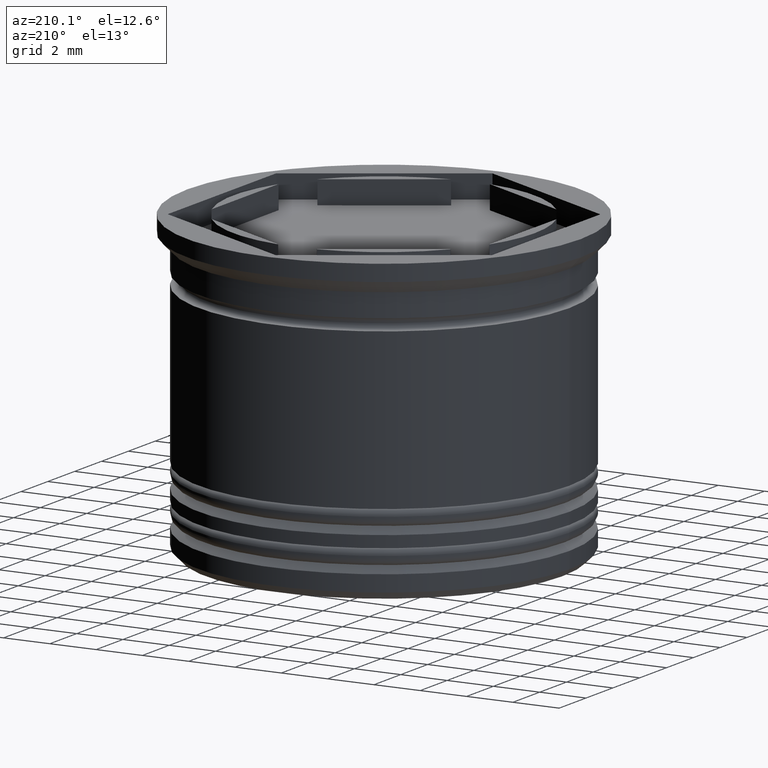
[diagram: clean part render]
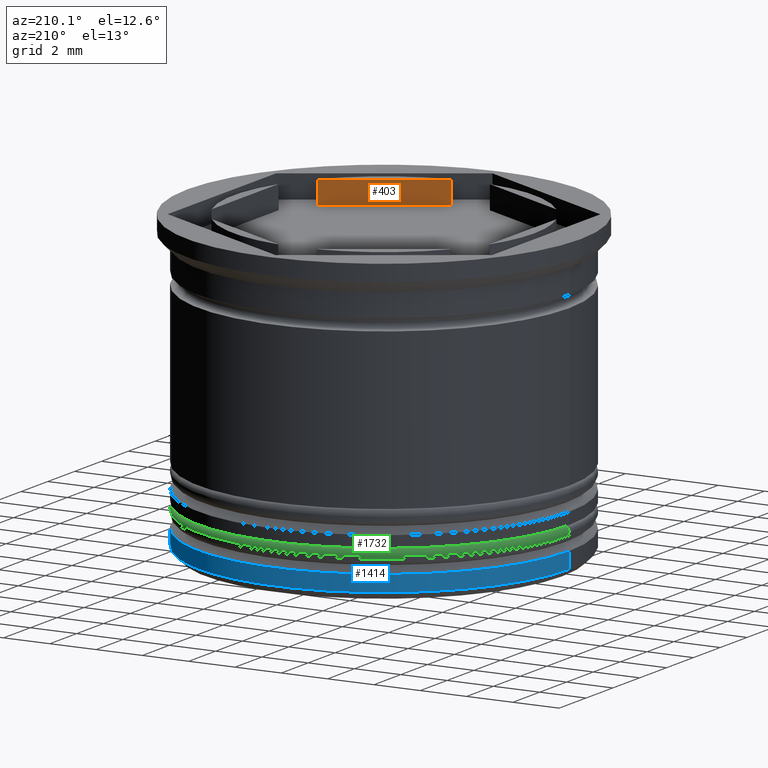
[diagram: same view with three faces highlighted in distinct colors, each labeled with its STEP entity id]
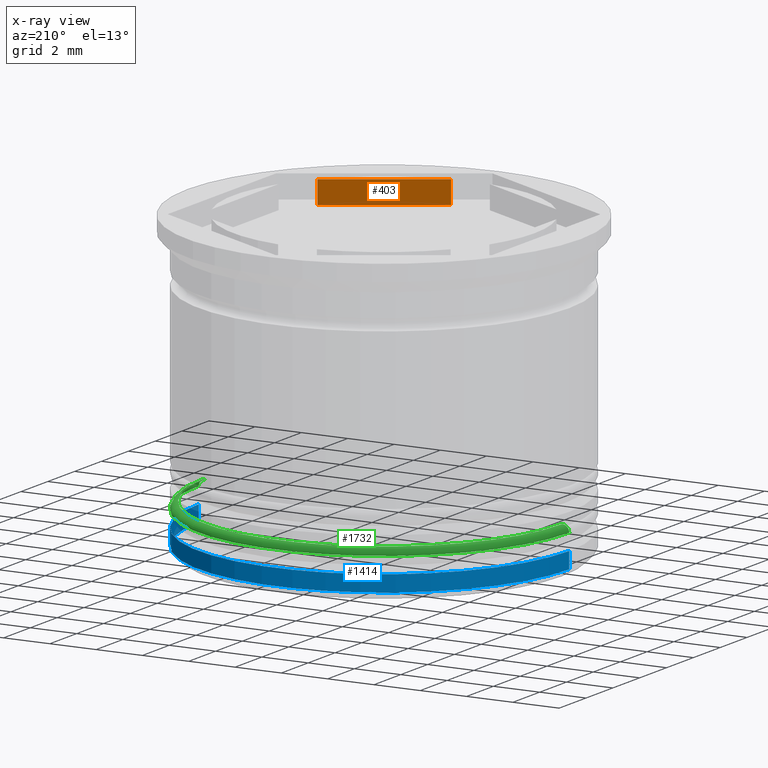
[diagram: x-ray of the same camera — body ghosted, the three highlighted faces saturated]
A machine part, auxiliary view with three faces highlighted in distinct colors.
The next image is the same camera in x-ray (body ghosted, the three faces saturated) — at least one of them is partly hidden behind the body in this view.
Their STEP definitions:

[orange] entity #403 — the highlighted planar face has unit normal (0.5, -0.866, 0).
#79 = CARTESIAN_POINT ( 'NONE',  ( 5.165063509461093716, -3.946152422706633356, 0.000000000000000000 ) ) ;
#94 = CARTESIAN_POINT ( 'NONE',  ( 0.8349364905389003999, -6.446152422706632912, 18.38477631085023134 ) ) ;
#99 = VERTEX_POINT ( 'NONE', #79 ) ;
#103 = DIRECTION ( 'NONE',  ( 0.000000000000000000, 0.000000000000000000, 1.000000000000000000 ) ) ;
#263 = VERTEX_POINT ( 'NONE', #787 ) ;
#330 = FACE_OUTER_BOUND ( 'NONE', #1373, .T. ) ;
#354 = DIRECTION ( 'NONE',  ( 0.8660254037844387076, 0.4999999999999997780, 0.000000000000000000 ) ) ;
#403 = ADVANCED_FACE ( 'NONE', ( #330 ), #1433, .F. ) ;
#459 = DIRECTION ( 'NONE',  ( 0.8660254037844388186, 0.4999999999999998335, 0.000000000000000000 ) ) ;
#567 = LINE ( 'NONE', #94, #849 ) ;
#575 = VERTEX_POINT ( 'NONE', #1054 ) ;
#614 = DIRECTION ( 'NONE',  ( -0.8660254037844388186, -0.4999999999999998335, 0.000000000000000000 ) ) ;
#698 = CARTESIAN_POINT ( 'NONE',  ( -4.336808689942017736E-16, -6.928203230275508773, -19.33030277982335932 ) ) ;
#787 = CARTESIAN_POINT ( 'NONE',  ( 0.8349364905389020652, -6.446152422706632024, 0.000000000000000000 ) ) ;
#844 = VERTEX_POINT ( 'NONE', #1257 ) ;
#849 = VECTOR ( 'NONE', #1033, 1000.000000000000000 ) ;
#1021 = EDGE_CURVE ( 'NONE', #844, #575, #1380, .T. ) ;
#1033 = DIRECTION ( 'NONE',  ( -0.000000000000000000, -0.000000000000000000, -1.000000000000000000 ) ) ;
#1054 = CARTESIAN_POINT ( 'NONE',  ( 0.8349364905389047298, -6.446152422706633800, -1.000000000000000888 ) ) ;
#1197 = ORIENTED_EDGE ( 'NONE', *, *, #1353, .F. ) ;
#1257 = CARTESIAN_POINT ( 'NONE',  ( 5.165063509461095492, -3.946152422706636909, -1.000000000000000888 ) ) ;
#1278 = EDGE_CURVE ( 'NONE', #844, #99, #1348, .T. ) ;
#1292 = DIRECTION ( 'NONE',  ( 0.4999999999999998335, -0.8660254037844388186, 0.000000000000000000 ) ) ;
#1342 = LINE ( 'NONE', #1533, #1950 ) ;
#1348 = LINE ( 'NONE', #1465, #1882 ) ;
#1353 = EDGE_CURVE ( 'NONE', #263, #575, #567, .T. ) ;
#1373 = EDGE_LOOP ( 'NONE', ( #1873, #1719, #1985, #1197 ) ) ;
#1380 = LINE ( 'NONE', #1684, #1881 ) ;
#1419 = EDGE_CURVE ( 'NONE', #263, #99, #1342, .T. ) ;
#1433 = PLANE ( 'NONE',  #1975 ) ;
#1465 = CARTESIAN_POINT ( 'NONE',  ( 5.165063509461097269, -3.946152422706632468, 18.38477631085023134 ) ) ;
#1533 = CARTESIAN_POINT ( 'NONE',  ( 2.999999999999998224, -5.196152422706632912, 0.000000000000000000 ) ) ;
#1684 = CARTESIAN_POINT ( 'NONE',  ( -4.336808689942017736E-16, -6.928203230275508773, -1.000000000000000888 ) ) ;
#1719 = ORIENTED_EDGE ( 'NONE', *, *, #1278, .F. ) ;
#1873 = ORIENTED_EDGE ( 'NONE', *, *, #1419, .T. ) ;
#1881 = VECTOR ( 'NONE', #614, 999.9999999999998863 ) ;
#1882 = VECTOR ( 'NONE', #103, 1000.000000000000000 ) ;
#1950 = VECTOR ( 'NONE', #459, 999.9999999999998863 ) ;
#1975 = AXIS2_PLACEMENT_3D ( 'NONE', #698, #1292, #354 ) ;
#1985 = ORIENTED_EDGE ( 'NONE', *, *, #1021, .T. ) ;

[blue] entity #1414 — the highlighted cylindrical surface (partial cylindrical patch) has radius 8 mm, axis along (-0, -0, 1).
#138 = EDGE_CURVE ( 'NONE', #559, #988, #716, .T. ) ;
#195 = EDGE_CURVE ( 'NONE', #559, #1538, #1020, .T. ) ;
#209 = CARTESIAN_POINT ( 'NONE',  ( 8.000000000000000000, 0.000000000000000000, 0.000000000000000000 ) ) ;
#249 = FACE_OUTER_BOUND ( 'NONE', #987, .T. ) ;
#312 = VECTOR ( 'NONE', #692, 1000.000000000000000 ) ;
#328 = DIRECTION ( 'NONE',  ( 0.000000000000000000, 0.000000000000000000, -1.000000000000000000 ) ) ;
#559 = VERTEX_POINT ( 'NONE', #1041 ) ;
#651 = DIRECTION ( 'NONE',  ( -1.000000000000000000, 0.000000000000000000, 0.000000000000000000 ) ) ;
#692 = DIRECTION ( 'NONE',  ( -0.000000000000000000, -0.000000000000000000, 1.000000000000000000 ) ) ;
#716 = CIRCLE ( 'NONE', #1135, 8.000000000000000000 ) ;
#758 = DIRECTION ( 'NONE',  ( -0.000000000000000000, -0.000000000000000000, 1.000000000000000000 ) ) ;
#826 = EDGE_CURVE ( 'NONE', #1759, #1538, #1658, .T. ) ;
#868 = DIRECTION ( 'NONE',  ( -0.000000000000000000, -0.000000000000000000, 1.000000000000000000 ) ) ;
#878 = CYLINDRICAL_SURFACE ( 'NONE', #1484, 8.000000000000000000 ) ;
#893 = CARTESIAN_POINT ( 'NONE',  ( -8.000000000000000000, 9.797174393178825657E-16, -12.69999999999999929 ) ) ;
#907 = LINE ( 'NONE', #1525, #912 ) ;
#912 = VECTOR ( 'NONE', #758, 1000.000000000000000 ) ;
#965 = ORIENTED_EDGE ( 'NONE', *, *, #138, .T. ) ;
#987 = EDGE_LOOP ( 'NONE', ( #965, #1793, #1451, #1151 ) ) ;
#988 = VERTEX_POINT ( 'NONE', #893 ) ;
#1020 = LINE ( 'NONE', #209, #312 ) ;
#1028 = DIRECTION ( 'NONE',  ( -0.000000000000000000, -0.000000000000000000, 1.000000000000000000 ) ) ;
#1041 = CARTESIAN_POINT ( 'NONE',  ( 8.000000000000000000, 0.000000000000000000, -12.69999999999999929 ) ) ;
#1135 = AXIS2_PLACEMENT_3D ( 'NONE', #1437, #1028, #1326 ) ;
#1151 = ORIENTED_EDGE ( 'NONE', *, *, #195, .F. ) ;
#1326 = DIRECTION ( 'NONE',  ( -1.000000000000000000, 0.000000000000000000, 0.000000000000000000 ) ) ;
#1400 = CARTESIAN_POINT ( 'NONE',  ( 8.000000000000000000, 0.000000000000000000, -12.00000000000000355 ) ) ;
#1414 = ADVANCED_FACE ( 'NONE', ( #249 ), #878, .T. ) ;
#1437 = CARTESIAN_POINT ( 'NONE',  ( 0.000000000000000000, 0.000000000000000000, -12.69999999999999929 ) ) ;
#1451 = ORIENTED_EDGE ( 'NONE', *, *, #826, .T. ) ;
#1484 = AXIS2_PLACEMENT_3D ( 'NONE', #1765, #868, #1487 ) ;
#1487 = DIRECTION ( 'NONE',  ( 1.000000000000000000, 0.000000000000000000, 0.000000000000000000 ) ) ;
#1494 = CARTESIAN_POINT ( 'NONE',  ( -8.000000000000000000, 9.797174393178825657E-16, -12.00000000000000355 ) ) ;
#1525 = CARTESIAN_POINT ( 'NONE',  ( -8.000000000000000000, 9.797174393178825657E-16, 0.000000000000000000 ) ) ;
#1534 = EDGE_CURVE ( 'NONE', #988, #1759, #907, .T. ) ;
#1538 = VERTEX_POINT ( 'NONE', #1400 ) ;
#1546 = AXIS2_PLACEMENT_3D ( 'NONE', #1567, #328, #651 ) ;
#1567 = CARTESIAN_POINT ( 'NONE',  ( 0.000000000000000000, 0.000000000000000000, -12.00000000000000355 ) ) ;
#1658 = CIRCLE ( 'NONE', #1546, 8.000000000000000000 ) ;
#1759 = VERTEX_POINT ( 'NONE', #1494 ) ;
#1765 = CARTESIAN_POINT ( 'NONE',  ( 0.000000000000000000, 0.000000000000000000, 0.000000000000000000 ) ) ;
#1793 = ORIENTED_EDGE ( 'NONE', *, *, #1534, .T. ) ;

[green] entity #1732 — the highlighted toroidal blend (fillet) surface has major radius 7.7 mm and minor (blend) radius 0.3 mm.
#19 = ORIENTED_EDGE ( 'NONE', *, *, #82, .T. ) ;
#69 = VERTEX_POINT ( 'NONE', #1577 ) ;
#82 = EDGE_CURVE ( 'NONE', #562, #69, #1779, .T. ) ;
#105 = ORIENTED_EDGE ( 'NONE', *, *, #771, .F. ) ;
#144 = DIRECTION ( 'NONE',  ( -1.224646799147353207E-16, 1.000000000000000000, 0.000000000000000000 ) ) ;
#189 = CIRCLE ( 'NONE', #785, 7.700000000000001954 ) ;
#216 = VERTEX_POINT ( 'NONE', #1641 ) ;
#241 = FACE_OUTER_BOUND ( 'NONE', #703, .T. ) ;
#259 = CARTESIAN_POINT ( 'NONE',  ( 0.000000000000000000, 0.000000000000000000, -11.29999999999999716 ) ) ;
#269 = EDGE_CURVE ( 'NONE', #216, #69, #1601, .T. ) ;
#361 = CARTESIAN_POINT ( 'NONE',  ( 7.700000000000001954, 9.429780353434622974E-16, -11.29999999999999716 ) ) ;
#385 = CARTESIAN_POINT ( 'NONE',  ( 0.000000000000000000, 0.000000000000000000, -11.00000000000000000 ) ) ;
#562 = VERTEX_POINT ( 'NONE', #566 ) ;
#566 = CARTESIAN_POINT ( 'NONE',  ( 7.700000000000001954, 9.613477373306725302E-16, -11.00000000000000000 ) ) ;
#581 = ORIENTED_EDGE ( 'NONE', *, *, #269, .F. ) ;
#585 = CARTESIAN_POINT ( 'NONE',  ( -7.700000000000001954, 0.000000000000000000, -11.00000000000000000 ) ) ;
#599 = DIRECTION ( 'NONE',  ( 0.000000000000000000, 0.000000000000000000, -1.000000000000000000 ) ) ;
#634 = DIRECTION ( 'NONE',  ( -1.000000000000000000, 0.000000000000000000, 0.000000000000000000 ) ) ;
#703 = EDGE_LOOP ( 'NONE', ( #1404, #19, #581, #105 ) ) ;
#740 = DIRECTION ( 'NONE',  ( 0.000000000000000000, 0.000000000000000000, -1.000000000000000000 ) ) ;
#757 = DIRECTION ( 'NONE',  ( -0.000000000000000000, -1.000000000000000000, -0.000000000000000000 ) ) ;
#771 = EDGE_CURVE ( 'NONE', #1313, #216, #1169, .T. ) ;
#785 = AXIS2_PLACEMENT_3D ( 'NONE', #385, #1013, #1611 ) ;
#873 = AXIS2_PLACEMENT_3D ( 'NONE', #1401, #740, #634 ) ;
#908 = AXIS2_PLACEMENT_3D ( 'NONE', #1513, #757, #599 ) ;
#1013 = DIRECTION ( 'NONE',  ( -0.000000000000000000, -0.000000000000000000, 1.000000000000000000 ) ) ;
#1023 = DIRECTION ( 'NONE',  ( 0.000000000000000000, 0.000000000000000000, -1.000000000000000000 ) ) ;
#1165 = DIRECTION ( 'NONE',  ( -1.000000000000000000, -1.224646799147353207E-16, 0.000000000000000000 ) ) ;
#1169 = CIRCLE ( 'NONE', #908, 0.2999999999999999334 ) ;
#1313 = VERTEX_POINT ( 'NONE', #585 ) ;
#1401 = CARTESIAN_POINT ( 'NONE',  ( 0.000000000000000000, 0.000000000000000000, -11.29999999999999716 ) ) ;
#1404 = ORIENTED_EDGE ( 'NONE', *, *, #1808, .F. ) ;
#1513 = CARTESIAN_POINT ( 'NONE',  ( -7.700000000000001954, 0.000000000000000000, -11.29999999999999716 ) ) ;
#1577 = CARTESIAN_POINT ( 'NONE',  ( 8.000000000000001776, 0.000000000000000000, -11.29999999999999716 ) ) ;
#1601 = CIRCLE ( 'NONE', #873, 8.000000000000001776 ) ;
#1611 = DIRECTION ( 'NONE',  ( -1.000000000000000000, 0.000000000000000000, 0.000000000000000000 ) ) ;
#1641 = CARTESIAN_POINT ( 'NONE',  ( -8.000000000000001776, 9.797174393178827630E-16, -11.29999999999999716 ) ) ;
#1686 = AXIS2_PLACEMENT_3D ( 'NONE', #361, #144, #1165 ) ;
#1696 = AXIS2_PLACEMENT_3D ( 'NONE', #259, #1023, #1788 ) ;
#1732 = ADVANCED_FACE ( 'NONE', ( #241 ), #1951, .T. ) ;
#1779 = CIRCLE ( 'NONE', #1686, 0.2999999999999999334 ) ;
#1788 = DIRECTION ( 'NONE',  ( -1.000000000000000000, 0.000000000000000000, 0.000000000000000000 ) ) ;
#1808 = EDGE_CURVE ( 'NONE', #562, #1313, #189, .T. ) ;
#1951 = TOROIDAL_SURFACE ( 'NONE', #1696, 7.700000000000001954, 0.2999999999999999889 ) ;